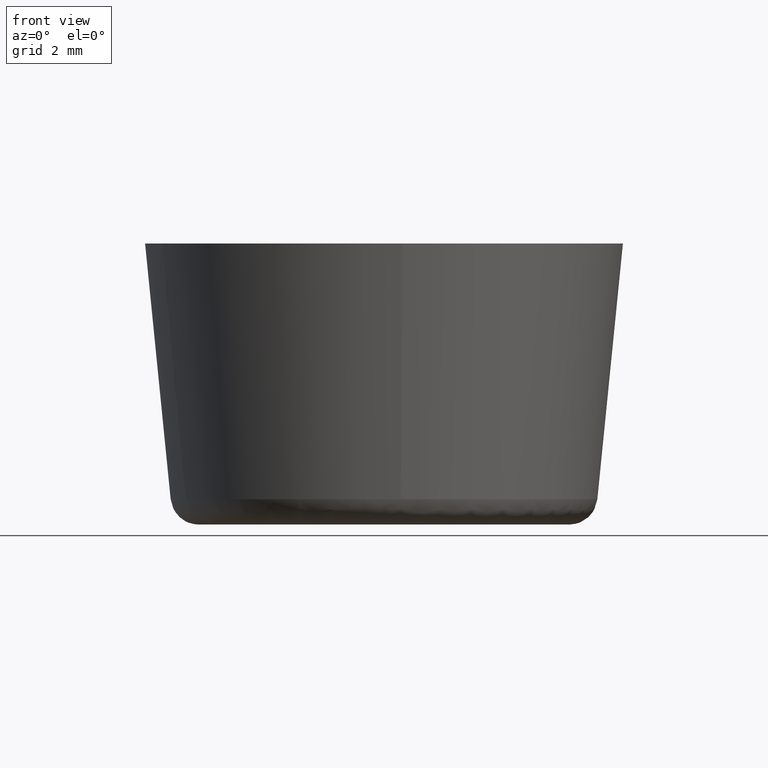
[diagram: clean part render]
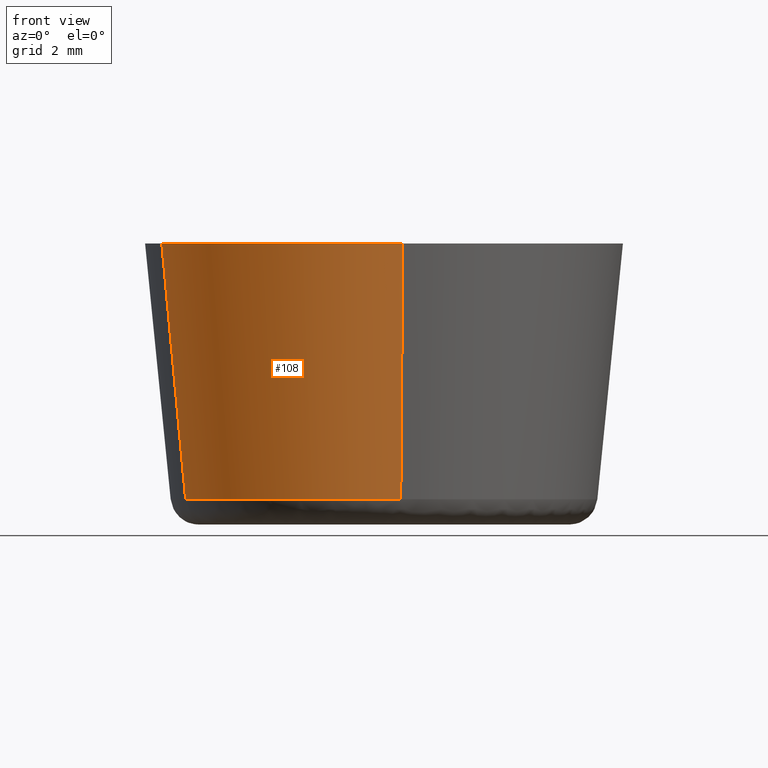
[diagram: same view with one face highlighted and labeled with its STEP entity id]
A machine part, front view. The second image highlights one B-rep face of the part: STEP entity #108.
In plain terms, the highlighted face is a freeform B-spline surface patch.
Its self-contained STEP definition (entity closure, byte-faithful):
#44=CARTESIAN_POINT('',(-7.036564186098089,-2.784028136203508,0.673008399999975));
#45=CARTESIAN_POINT('',(-4.979734987079021,-7.982614490461692,0.673008399999975));
#46=CARTESIAN_POINT('',(0.593723613175193,-7.543973785705333,0.673008399999975));
#47=CARTESIAN_POINT('',(-7.925529652642115,-3.135748777914050,10.233174790000000));
#48=CARTESIAN_POINT('',(-5.608850606432031,-8.991099374146007,10.233174790000001));
#49=CARTESIAN_POINT('',(0.668731781199475,-8.497042925507243,10.233174790000000));
#57=(BOUNDED_SURFACE()B_SPLINE_SURFACE(2,1,((#44,#47),(#45,#48),(#46,#49)),.UNSPECIFIED.,.F.,.F.,.U.)B_SPLINE_SURFACE_WITH_KNOTS((3,3),(2,2),(0.0,11.220510405016700),(0.0,9.607848271855632),.UNSPECIFIED.)GEOMETRIC_REPRESENTATION_ITEM()RATIONAL_B_SPLINE_SURFACE(((0.906274169979695,0.906274169979695),(0.765685424949238,0.765685424949238),(1.0,1.0)))REPRESENTATION_ITEM('')SURFACE());
#58=CARTESIAN_POINT('',(0.595502299639460,-7.566652729299925,0.900494361166925));
#59=VERTEX_POINT('',#58);
#60=CARTESIAN_POINT('',(-7.057718579691434,-2.792394120895210,0.900494336007843));
#61=VERTEX_POINT('',#60);
#62=CARTESIAN_POINT('',(0.595502299639460,-7.566652729299925,0.900494361166925));
#63=CARTESIAN_POINT('',(0.298210780512778,-7.590049839335957,0.900494360497936));
#64=CARTESIAN_POINT('',(-3.701196E-009,-7.590049842201561,0.900494359792231));
#65=CARTESIAN_POINT('',(-5.159520854105500,-7.590049891781074,0.900494347582419));
#66=CARTESIAN_POINT('',(-7.057718579691434,-2.792394120895211,0.900494336007843));
#74=(BOUNDED_CURVE()B_SPLINE_CURVE(2,(#62,#63,#64,#65,#66),.UNSPECIFIED.,.F.,.U.)B_SPLINE_CURVE_WITH_KNOTS((3,2,3),(0.736331439895390,0.750000000000000,0.937532622925810),.UNSPECIFIED.)CURVE()GEOMETRIC_REPRESENTATION_ITEM()RATIONAL_B_SPLINE_CURVE((0.969723646802467,0.983986285737662,1.0,0.780291865754920,0.890203273054767))REPRESENTATION_ITEM(''));
#75=EDGE_CURVE('',#59,#61,#74,.T.);
#76=ORIENTED_EDGE('',*,*,#75,.F.);
#77=CARTESIAN_POINT('',(0.666897430078629,-8.473797589413332,9.999998687420924));
#78=VERTEX_POINT('',#77);
#79=CARTESIAN_POINT('',(0.595502299639460,-7.566652729299925,0.900494361166925));
#80=CARTESIAN_POINT('',(0.666897430078629,-8.473797589413332,9.999998687420924));
#81=QUASI_UNIFORM_CURVE('',1,(#79,#80),.UNSPECIFIED.,.F.,.U.);
#82=EDGE_CURVE('',#59,#78,#81,.T.);
#83=ORIENTED_EDGE('',*,*,#82,.T.);
#84=CARTESIAN_POINT('',(-7.903848539507668,-3.127167380244424,9.999998564441299));
#85=VERTEX_POINT('',#84);
#86=CARTESIAN_POINT('',(0.666897430078629,-8.473797589413332,9.999998687420924));
#87=CARTESIAN_POINT('',(0.333963455127641,-8.499999871220485,9.999998684150841));
#88=CARTESIAN_POINT('',(-2.441890E-009,-8.499999873409490,9.999998680701287));
#89=CARTESIAN_POINT('',(-5.778080802938428,-8.499999911282620,9.999998621018747));
#90=CARTESIAN_POINT('',(-7.903848539507668,-3.127167380244425,9.999998564441299));
#98=(BOUNDED_CURVE()B_SPLINE_CURVE(2,(#86,#87,#88,#89,#90),.UNSPECIFIED.,.F.,.U.)B_SPLINE_CURVE_WITH_KNOTS((3,2,3),(0.736331399219582,0.750000000000000,0.937532605541042),.UNSPECIFIED.)CURVE()GEOMETRIC_REPRESENTATION_ITEM()RATIONAL_B_SPLINE_CURVE((0.969723561915069,0.983986238082989,1.0,0.780291886122443,0.890203252676616))REPRESENTATION_ITEM(''));
#99=EDGE_CURVE('',#78,#85,#98,.T.);
#100=ORIENTED_EDGE('',*,*,#99,.T.);
#101=CARTESIAN_POINT('',(-7.057718579691434,-2.792394120895210,0.900494336007843));
#102=CARTESIAN_POINT('',(-7.903848539507668,-3.127167380244424,9.999998564441299));
#103=QUASI_UNIFORM_CURVE('',1,(#101,#102),.UNSPECIFIED.,.F.,.U.);
#104=EDGE_CURVE('',#61,#85,#103,.T.);
#105=ORIENTED_EDGE('',*,*,#104,.F.);
#106=EDGE_LOOP('',(#76,#83,#100,#105));
#107=FACE_OUTER_BOUND('',#106,.T.);
#108=ADVANCED_FACE('',(#107),#57,.T.);